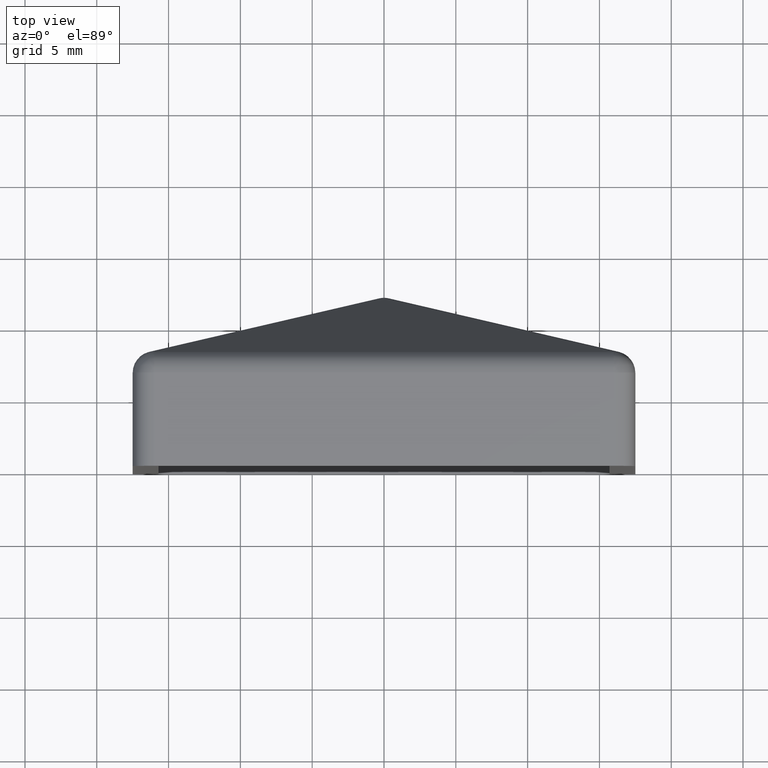
[diagram: clean part render]
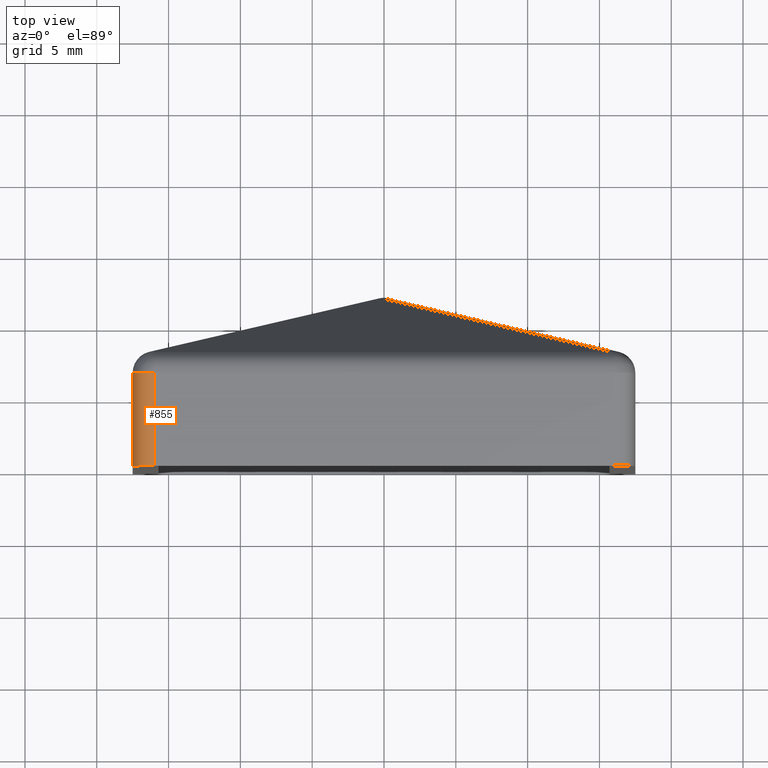
[diagram: same view with one face highlighted and labeled with its STEP entity id]
A machine part, top view. The second image highlights one B-rep face of the part: STEP entity #855.
In plain terms, the highlighted cylindrical surface (edge-blend (fillet) strip) has radius 1.5 mm, axis along (0, -1, 0).
Its self-contained STEP definition (entity closure, byte-faithful):
#385 = CARTESIAN_POINT ( 'NONE',  ( -17.49999999999998579, 0.000000000000000000, 16.00000000000001066 ) ) ;
#438 = ORIENTED_EDGE ( 'NONE', *, *, #2372, .F. ) ;
#485 = CYLINDRICAL_SURFACE ( 'NONE', #6133, 1.499999999999999556 ) ;
#777 = CARTESIAN_POINT ( 'NONE',  ( -15.99999999999998224, 6.500000000000000000, 16.00000000000001066 ) ) ;
#855 = ADVANCED_FACE ( 'NONE', ( #5685 ), #485, .T. ) ;
#1718 = DIRECTION ( 'NONE',  ( 0.000000000000000000, -1.000000000000000000, 0.000000000000000000 ) ) ;
#2244 = CARTESIAN_POINT ( 'NONE',  ( -15.99999999999998224, 12.00000000000000000, 16.00000000000001066 ) ) ;
#2295 = VECTOR ( 'NONE', #10739, 1000.000000000000000 ) ;
#2372 = EDGE_CURVE ( 'NONE', #2664, #7421, #7401, .T. ) ;
#2436 = VECTOR ( 'NONE', #3152, 1000.000000000000000 ) ;
#2585 = DIRECTION ( 'NONE',  ( 0.000000000000000000, 0.000000000000000000, -1.000000000000000000 ) ) ;
#2664 = VERTEX_POINT ( 'NONE', #385 ) ;
#2866 = ORIENTED_EDGE ( 'NONE', *, *, #8761, .F. ) ;
#3152 = DIRECTION ( 'NONE',  ( -0.000000000000000000, 1.000000000000000000, -0.000000000000000000 ) ) ;
#3658 = VERTEX_POINT ( 'NONE', #8238 ) ;
#3793 = VERTEX_POINT ( 'NONE', #5818 ) ;
#4327 = DIRECTION ( 'NONE',  ( -0.000000000000000000, -1.000000000000000000, -0.000000000000000000 ) ) ;
#5102 = CARTESIAN_POINT ( 'NONE',  ( -15.99999999999998224, 0.000000000000000000, 16.00000000000001066 ) ) ;
#5685 = FACE_OUTER_BOUND ( 'NONE', #5927, .T. ) ;
#5818 = CARTESIAN_POINT ( 'NONE',  ( -15.99999999999998224, 0.000000000000000000, 17.50000000000001066 ) ) ;
#5927 = EDGE_LOOP ( 'NONE', ( #2866, #10012, #438, #11112 ) ) ;
#6133 = AXIS2_PLACEMENT_3D ( 'NONE', #2244, #10483, #9493 ) ;
#6157 = CARTESIAN_POINT ( 'NONE',  ( -15.99999999999998224, 12.00000000000000000, 17.50000000000001066 ) ) ;
#7241 = AXIS2_PLACEMENT_3D ( 'NONE', #5102, #4327, #7904 ) ;
#7401 = LINE ( 'NONE', #11275, #2436 ) ;
#7421 = VERTEX_POINT ( 'NONE', #11751 ) ;
#7904 = DIRECTION ( 'NONE',  ( 0.000000000000000000, 0.000000000000000000, 1.000000000000000000 ) ) ;
#8123 = EDGE_CURVE ( 'NONE', #3793, #2664, #9397, .T. ) ;
#8238 = CARTESIAN_POINT ( 'NONE',  ( -15.99999999999998224, 6.500000000000000000, 17.50000000000002132 ) ) ;
#8490 = EDGE_CURVE ( 'NONE', #3658, #7421, #10676, .T. ) ;
#8761 = EDGE_CURVE ( 'NONE', #3658, #3793, #9532, .T. ) ;
#9277 = AXIS2_PLACEMENT_3D ( 'NONE', #777, #1718, #2585 ) ;
#9397 = CIRCLE ( 'NONE', #7241, 1.500000000000001332 ) ;
#9493 = DIRECTION ( 'NONE',  ( 0.000000000000000000, 0.000000000000000000, -1.000000000000000000 ) ) ;
#9532 = LINE ( 'NONE', #6157, #2295 ) ;
#10012 = ORIENTED_EDGE ( 'NONE', *, *, #8490, .T. ) ;
#10483 = DIRECTION ( 'NONE',  ( 0.000000000000000000, -1.000000000000000000, 0.000000000000000000 ) ) ;
#10676 = CIRCLE ( 'NONE', #9277, 1.499999999999999556 ) ;
#10739 = DIRECTION ( 'NONE',  ( 0.000000000000000000, -1.000000000000000000, 0.000000000000000000 ) ) ;
#11112 = ORIENTED_EDGE ( 'NONE', *, *, #8123, .F. ) ;
#11275 = CARTESIAN_POINT ( 'NONE',  ( -17.49999999999998579, 12.00000000000000000, 16.00000000000001066 ) ) ;
#11751 = CARTESIAN_POINT ( 'NONE',  ( -17.50000000000001776, 6.500000000000000000, 16.00000000000001066 ) ) ;